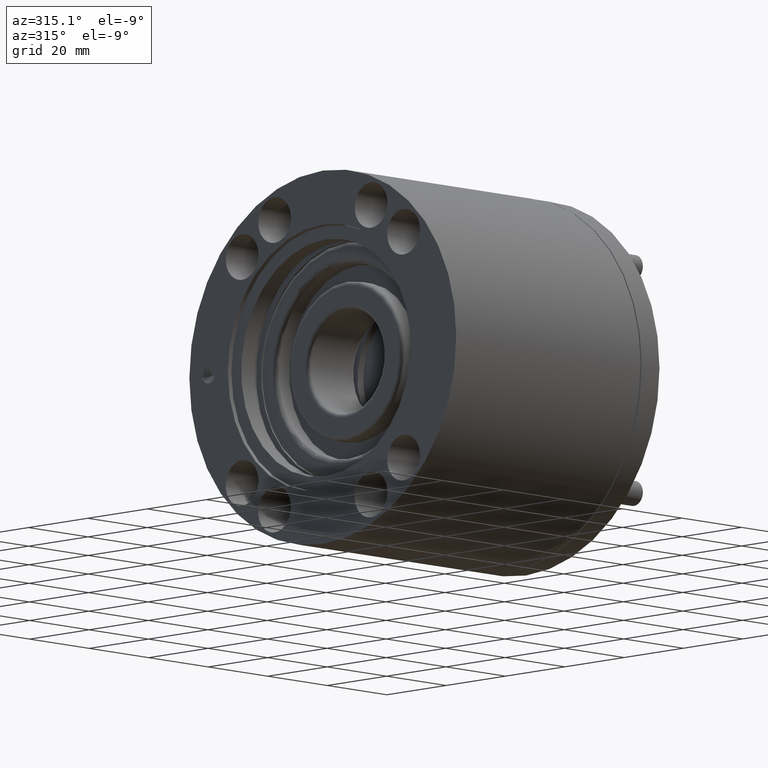
[diagram: clean part render]
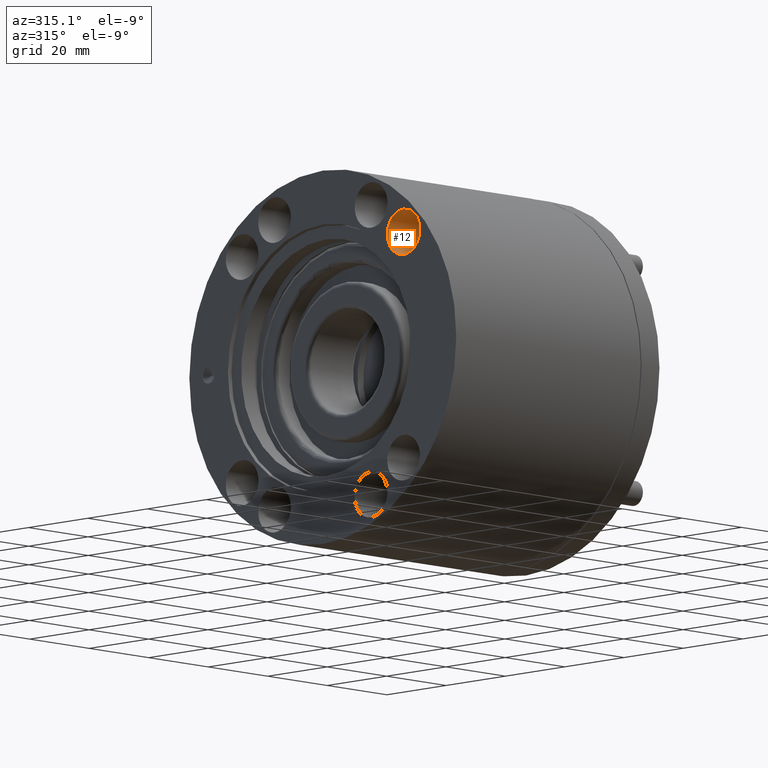
[diagram: same view with one face highlighted and labeled with its STEP entity id]
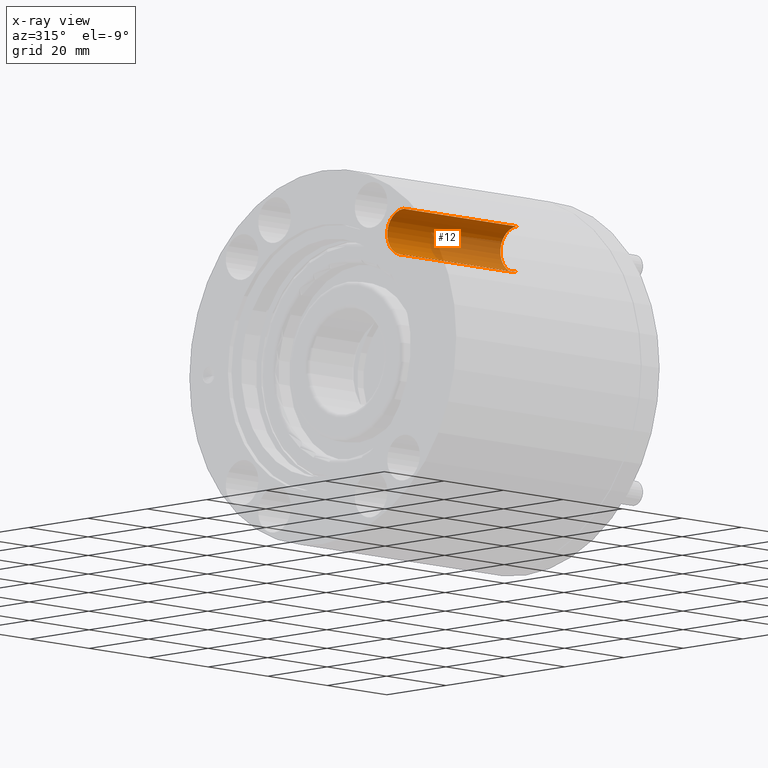
[diagram: x-ray of the same camera — body ghosted, the highlighted face saturated]
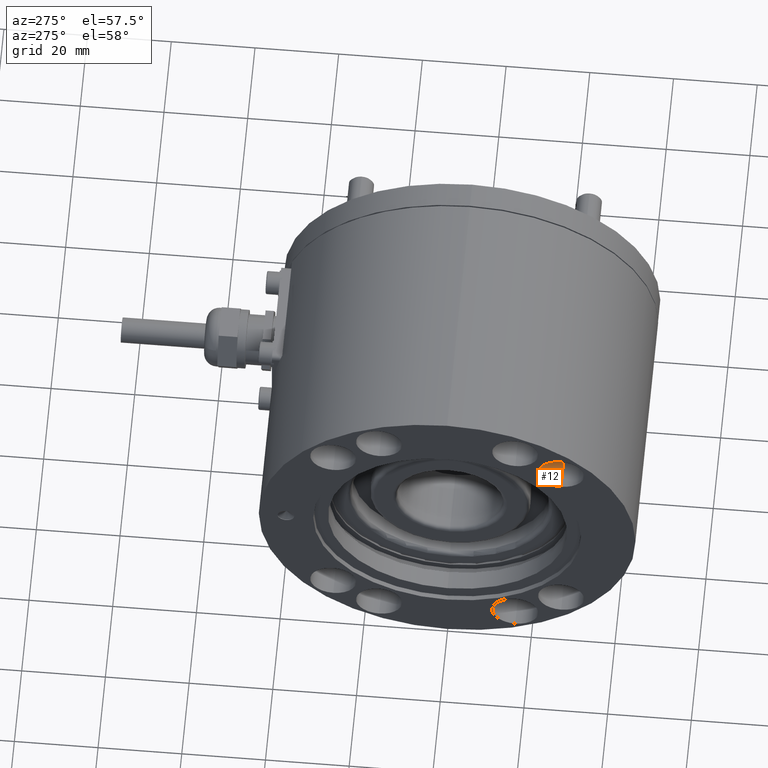
[diagram: same view with one face highlighted and labeled with its STEP entity id]
A machine part, auxiliary view. The second image highlights one B-rep face of the part: STEP entity #12.
The next image is the same camera in x-ray: the body ghosted, the highlighted face saturated — about 37% of this face is hidden behind the body in this view.
A second angle (auxiliary view) of the same face is appended — the face is thin or edge-on in the first view.
In plain terms, the highlighted cylindrical surface (edge-blend (fillet) strip) has radius 5.5 mm, axis along (-1, 0, 0).
Its self-contained STEP definition (entity closure, byte-faithful):
#12 = ADVANCED_FACE ( 'NONE', ( #2640 ), #11396, .F. ) ;
#322 = CIRCLE ( 'NONE', #4238, 5.499999999999991118 ) ;
#488 = VERTEX_POINT ( 'NONE', #2907 ) ;
#836 = CARTESIAN_POINT ( 'NONE',  ( 24.00000000000000000, -27.22361107568212546, -21.72361107568204730 ) ) ;
#855 = DIRECTION ( 'NONE',  ( 0.000000000000000000, 0.000000000000000000, -1.000000000000000000 ) ) ;
#1167 = AXIS2_PLACEMENT_3D ( 'NONE', #10403, #3450, #7622 ) ;
#1787 = ORIENTED_EDGE ( 'NONE', *, *, #6756, .T. ) ;
#1845 = AXIS2_PLACEMENT_3D ( 'NONE', #2424, #9471, #5374 ) ;
#2424 = CARTESIAN_POINT ( 'NONE',  ( 62.00000000000000000, -27.22361107568212546, -27.22361107568204019 ) ) ;
#2640 = FACE_OUTER_BOUND ( 'NONE', #12647, .T. ) ;
#2878 = LINE ( 'NONE', #11511, #10234 ) ;
#2907 = CARTESIAN_POINT ( 'NONE',  ( 24.00000000000000000, -27.22361107568212546, -32.72361107568202954 ) ) ;
#3450 = DIRECTION ( 'NONE',  ( 1.000000000000000000, -0.000000000000000000, -0.000000000000000000 ) ) ;
#3512 = CARTESIAN_POINT ( 'NONE',  ( 62.00000000000000000, -27.22361107568212546, -21.72361107568204375 ) ) ;
#3753 = LINE ( 'NONE', #11119, #10957 ) ;
#3908 = VERTEX_POINT ( 'NONE', #3512 ) ;
#4036 = EDGE_CURVE ( 'NONE', #12201, #3908, #2878, .T. ) ;
#4238 = AXIS2_PLACEMENT_3D ( 'NONE', #7811, #6926, #855 ) ;
#5182 = ORIENTED_EDGE ( 'NONE', *, *, #7152, .F. ) ;
#5374 = DIRECTION ( 'NONE',  ( 0.000000000000000000, 0.000000000000000000, -1.000000000000000000 ) ) ;
#6540 = DIRECTION ( 'NONE',  ( 1.000000000000000000, -0.000000000000000000, -0.000000000000000000 ) ) ;
#6756 = EDGE_CURVE ( 'NONE', #488, #9874, #3753, .T. ) ;
#6926 = DIRECTION ( 'NONE',  ( 1.000000000000000000, -0.000000000000000000, -0.000000000000000000 ) ) ;
#7152 = EDGE_CURVE ( 'NONE', #488, #12201, #322, .T. ) ;
#7622 = DIRECTION ( 'NONE',  ( 0.000000000000000000, 0.000000000000000000, -1.000000000000000000 ) ) ;
#7811 = CARTESIAN_POINT ( 'NONE',  ( 24.00000000000000000, -27.22361107568212546, -27.22361107568204019 ) ) ;
#8141 = CARTESIAN_POINT ( 'NONE',  ( 62.00000000000000000, -27.22361107568212546, -32.72361107568202954 ) ) ;
#9471 = DIRECTION ( 'NONE',  ( 1.000000000000000000, -0.000000000000000000, -0.000000000000000000 ) ) ;
#9874 = VERTEX_POINT ( 'NONE', #8141 ) ;
#10190 = ORIENTED_EDGE ( 'NONE', *, *, #4036, .F. ) ;
#10234 = VECTOR ( 'NONE', #6540, 1000.000000000000000 ) ;
#10403 = CARTESIAN_POINT ( 'NONE',  ( 62.00000000000000000, -27.22361107568212546, -27.22361107568204019 ) ) ;
#10705 = CIRCLE ( 'NONE', #1167, 5.499999999999991118 ) ;
#10957 = VECTOR ( 'NONE', #12037, 1000.000000000000000 ) ;
#11119 = CARTESIAN_POINT ( 'NONE',  ( 62.00000000000000000, -27.22361107568212546, -32.72361107568202954 ) ) ;
#11396 = CYLINDRICAL_SURFACE ( 'NONE', #1845, 5.499999999999991118 ) ;
#11511 = CARTESIAN_POINT ( 'NONE',  ( 62.00000000000000000, -27.22361107568212546, -21.72361107568204730 ) ) ;
#11973 = EDGE_CURVE ( 'NONE', #9874, #3908, #10705, .T. ) ;
#12037 = DIRECTION ( 'NONE',  ( 1.000000000000000000, -0.000000000000000000, -0.000000000000000000 ) ) ;
#12201 = VERTEX_POINT ( 'NONE', #836 ) ;
#12209 = ORIENTED_EDGE ( 'NONE', *, *, #11973, .T. ) ;
#12647 = EDGE_LOOP ( 'NONE', ( #10190, #5182, #1787, #12209 ) ) ;